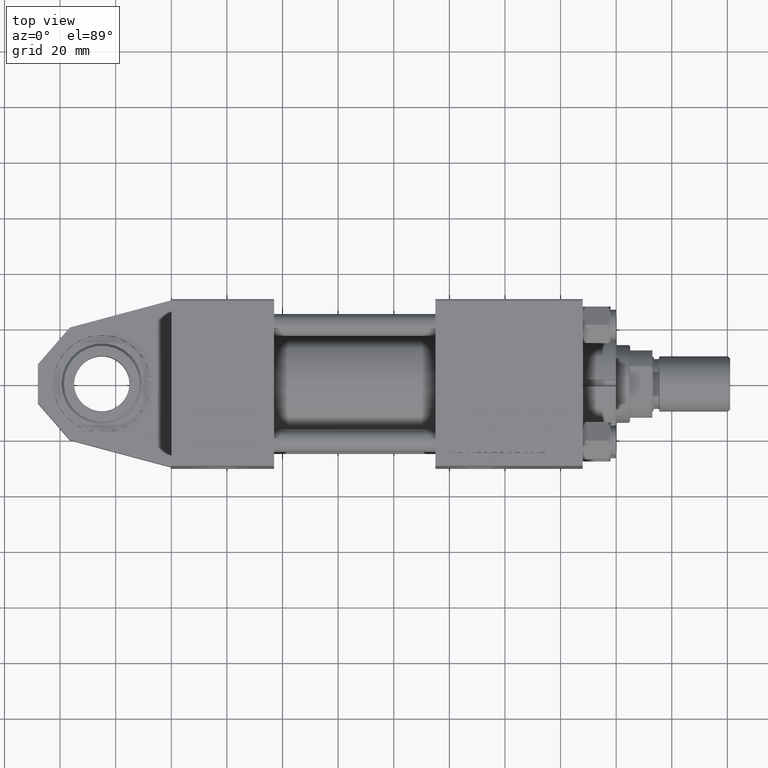
[diagram: clean part render]
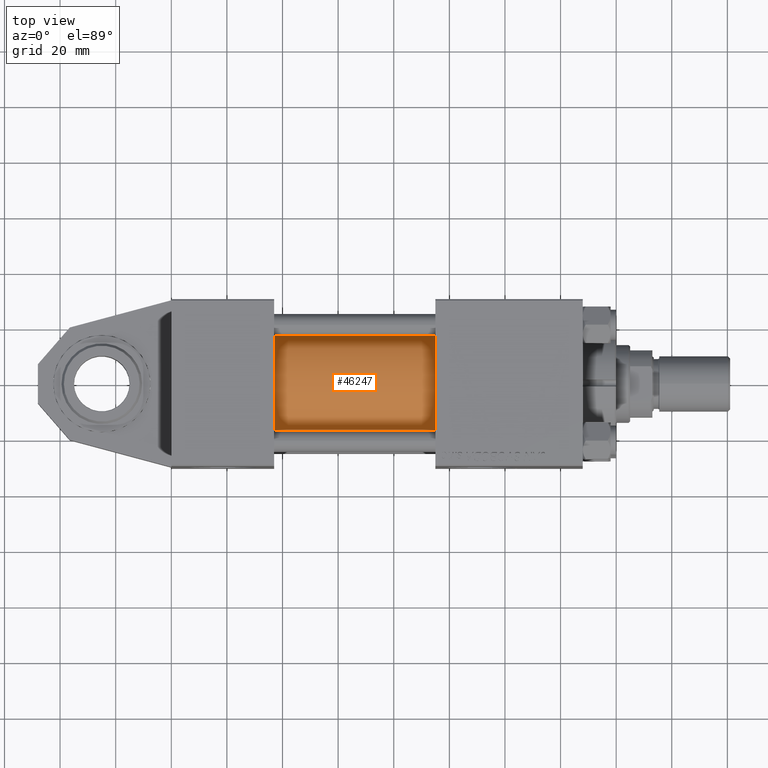
[diagram: same view with one face highlighted and labeled with its STEP entity id]
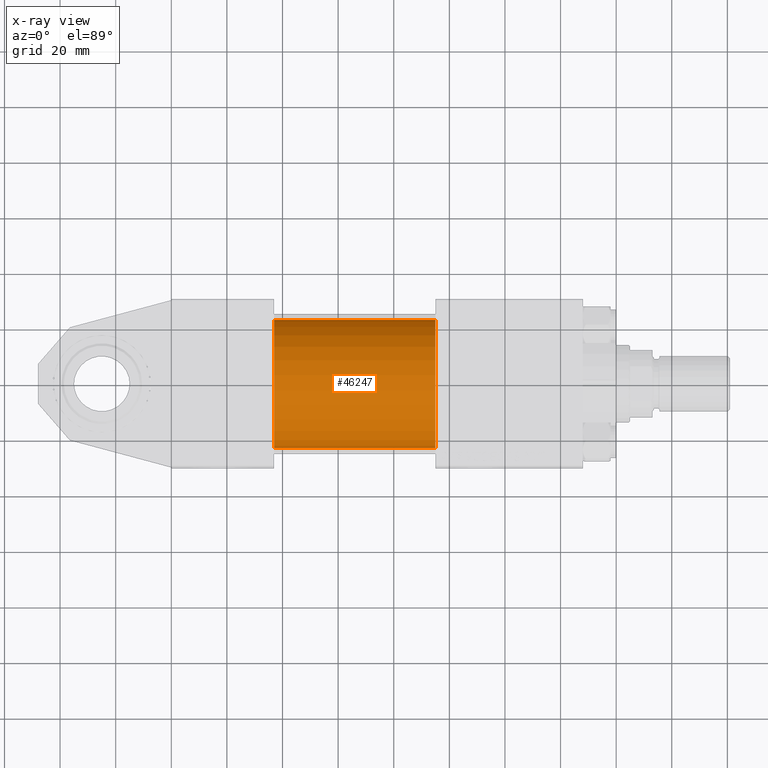
[diagram: x-ray of the same camera — body ghosted, the highlighted face saturated]
A machine part, top view. The second image highlights one B-rep face of the part: STEP entity #46247.
The next image is the same camera in x-ray: the body ghosted, the highlighted face saturated — about 0% of this face is hidden behind the body in this view.
In plain terms, the highlighted cylindrical surface (partial cylindrical patch) has radius 23 mm, axis along (-1, 0, -0).
Its self-contained STEP definition (entity closure, byte-faithful):
#2 = CIRCLE ( 'NONE', #1666, 23.00000000000000000 ) ;
#1321 = CARTESIAN_POINT ( 'NONE',  ( 37.00000000000000000, 2.146024240737012665E-16, -23.00000000000000000 ) ) ;
#1586 = DIRECTION ( 'NONE',  ( -1.000000000000000000, -0.000000000000000000, -0.000000000000000000 ) ) ;
#1666 = AXIS2_PLACEMENT_3D ( 'NONE', #13821, #17688, #6122 ) ;
#2197 = AXIS2_PLACEMENT_3D ( 'NONE', #30011, #38206, #3040 ) ;
#3040 = DIRECTION ( 'NONE',  ( 0.000000000000000000, 0.000000000000000000, 1.000000000000000000 ) ) ;
#4008 = VERTEX_POINT ( 'NONE', #1321 ) ;
#5545 = VECTOR ( 'NONE', #1586, 1000.000000000000000 ) ;
#6122 = DIRECTION ( 'NONE',  ( 0.000000000000000000, 0.000000000000000000, -1.000000000000000000 ) ) ;
#6873 = FACE_OUTER_BOUND ( 'NONE', #26427, .T. ) ;
#8659 = LINE ( 'NONE', #16617, #42450 ) ;
#9405 = CARTESIAN_POINT ( 'NONE',  ( 37.00000000000000000, -2.602085213965210642E-15, 0.000000000000000000 ) ) ;
#9470 = EDGE_CURVE ( 'NONE', #16256, #45823, #2, .T. ) ;
#13821 = CARTESIAN_POINT ( 'NONE',  ( 95.00000000000000000, -2.602085213965210642E-15, 0.000000000000000000 ) ) ;
#16219 = CARTESIAN_POINT ( 'NONE',  ( 37.00000000000000000, -2.602085213965210642E-15, 23.00000000000000000 ) ) ;
#16256 = VERTEX_POINT ( 'NONE', #23792 ) ;
#16617 = CARTESIAN_POINT ( 'NONE',  ( 95.00000000000000000, 2.146024240737012665E-16, -23.00000000000000000 ) ) ;
#16898 = VERTEX_POINT ( 'NONE', #16219 ) ;
#17688 = DIRECTION ( 'NONE',  ( 1.000000000000000000, 0.000000000000000000, 0.000000000000000000 ) ) ;
#19989 = ORIENTED_EDGE ( 'NONE', *, *, #9470, .F. ) ;
#20859 = CIRCLE ( 'NONE', #42222, 23.00000000000000000 ) ;
#22540 = CYLINDRICAL_SURFACE ( 'NONE', #2197, 23.00000000000000000 ) ;
#23792 = CARTESIAN_POINT ( 'NONE',  ( 95.00000000000000000, 2.146024240737012665E-16, -23.00000000000000000 ) ) ;
#26427 = EDGE_LOOP ( 'NONE', ( #19989, #27267, #28066, #47458 ) ) ;
#27175 = CARTESIAN_POINT ( 'NONE',  ( 95.00000000000000000, -2.602085213965210642E-15, 23.00000000000000000 ) ) ;
#27267 = ORIENTED_EDGE ( 'NONE', *, *, #34343, .T. ) ;
#28066 = ORIENTED_EDGE ( 'NONE', *, *, #38951, .T. ) ;
#28410 = DIRECTION ( 'NONE',  ( 1.000000000000000000, -0.000000000000000000, 0.000000000000000000 ) ) ;
#30011 = CARTESIAN_POINT ( 'NONE',  ( 95.00000000000000000, -2.602085213965210642E-15, 0.000000000000000000 ) ) ;
#32786 = DIRECTION ( 'NONE',  ( 0.000000000000000000, 0.000000000000000000, 1.000000000000000000 ) ) ;
#34343 = EDGE_CURVE ( 'NONE', #16256, #4008, #8659, .T. ) ;
#37788 = CARTESIAN_POINT ( 'NONE',  ( 95.00000000000000000, -2.602085213965210642E-15, 23.00000000000000000 ) ) ;
#38206 = DIRECTION ( 'NONE',  ( -1.000000000000000000, -0.000000000000000000, -0.000000000000000000 ) ) ;
#38951 = EDGE_CURVE ( 'NONE', #4008, #16898, #20859, .T. ) ;
#42222 = AXIS2_PLACEMENT_3D ( 'NONE', #9405, #28410, #32786 ) ;
#42450 = VECTOR ( 'NONE', #43357, 1000.000000000000000 ) ;
#43357 = DIRECTION ( 'NONE',  ( -1.000000000000000000, -0.000000000000000000, -0.000000000000000000 ) ) ;
#45823 = VERTEX_POINT ( 'NONE', #27175 ) ;
#46247 = ADVANCED_FACE ( 'NONE', ( #6873 ), #22540, .T. ) ;
#47458 = ORIENTED_EDGE ( 'NONE', *, *, #50798, .F. ) ;
#49105 = LINE ( 'NONE', #37788, #5545 ) ;
#50798 = EDGE_CURVE ( 'NONE', #45823, #16898, #49105, .T. ) ;